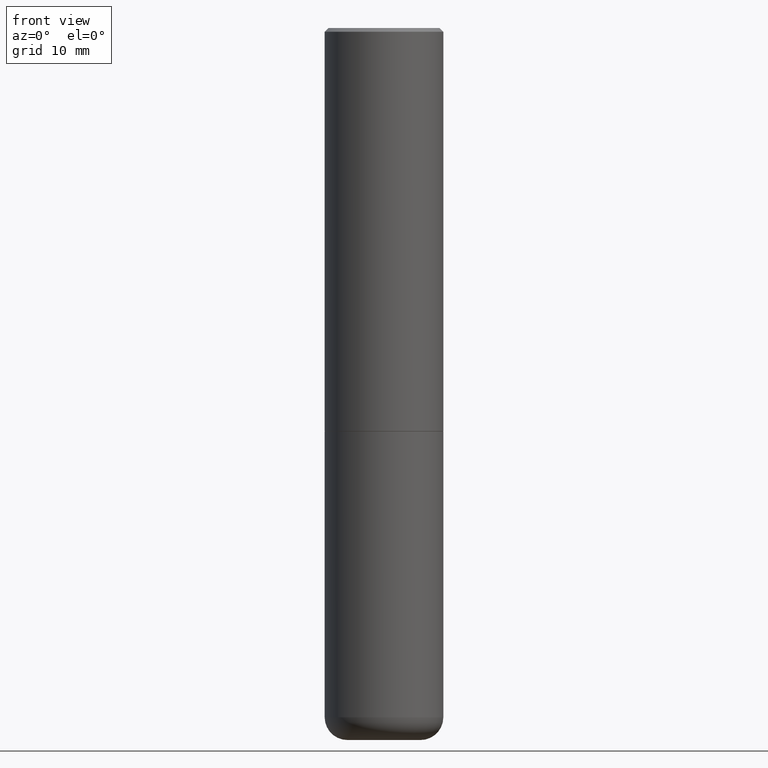
[diagram: clean part render]
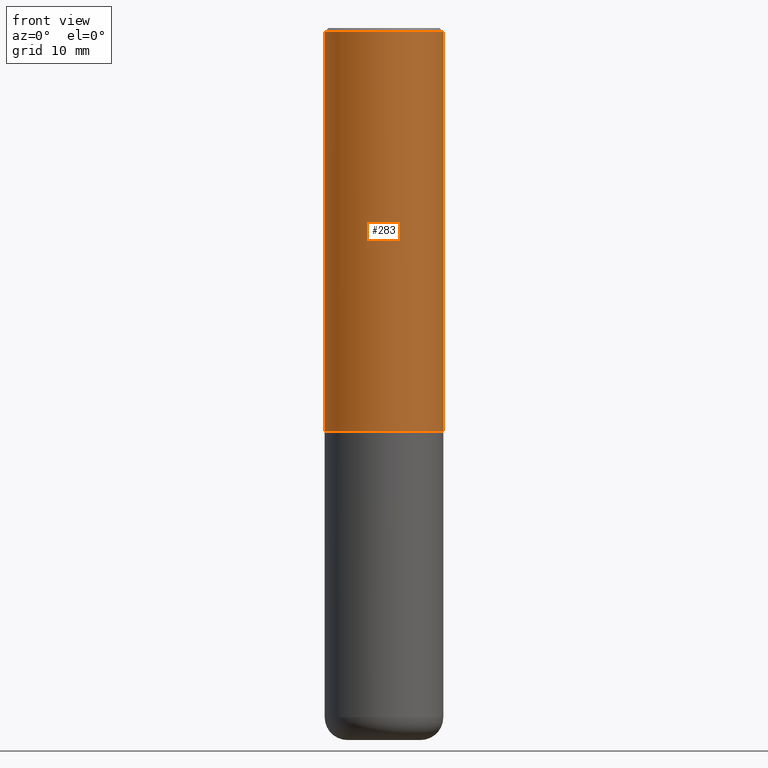
[diagram: same view with one face highlighted and labeled with its STEP entity id]
A machine part, front view. The second image highlights one B-rep face of the part: STEP entity #283.
In plain terms, the highlighted cylindrical surface (partial cylindrical patch) has radius 7.9375 mm, axis along (-0, 0, 1).
Its self-contained STEP definition (entity closure, byte-faithful):
#2 = ORIENTED_EDGE ( 'NONE', *, *, #420, .T. ) ;
#5 = ORIENTED_EDGE ( 'NONE', *, *, #96, .T. ) ;
#15 = DIRECTION ( 'NONE',  ( 1.000000000000000000, -6.982962677686266711E-15, 0.000000000000000000 ) ) ;
#17 = CARTESIAN_POINT ( 'NONE',  ( 4.890937612370311694E-31, -6.982962677686347076E-17, -0.02000000000000015654 ) ) ;
#23 = CARTESIAN_POINT ( 'NONE',  ( -0.3125000000000000000, -1.522421945989534932E-15, -2.124000000000000110 ) ) ;
#43 = CARTESIAN_POINT ( 'NONE',  ( 0.3125000000000000000, -9.598082200479800541E-15, -2.124000000000000110 ) ) ;
#44 = DIRECTION ( 'NONE',  ( -2.445468806185136597E-29, 3.491481338843145583E-15, 1.000000000000000000 ) ) ;
#54 = LINE ( 'NONE', #181, #147 ) ;
#87 = VERTEX_POINT ( 'NONE', #23 ) ;
#96 = EDGE_CURVE ( 'NONE', #87, #185, #227, .T. ) ;
#146 = EDGE_LOOP ( 'NONE', ( #206, #5, #2, #272 ) ) ;
#147 = VECTOR ( 'NONE', #326, 39.37007874015748143 ) ;
#166 = CIRCLE ( 'NONE', #483, 0.3124999999999991673 ) ;
#175 = VECTOR ( 'NONE', #246, 39.37007874015748143 ) ;
#181 = CARTESIAN_POINT ( 'NONE',  ( -0.3124999999999996114, 2.220446049250310320E-15, -1.537167215704655990E-29 ) ) ;
#185 = VERTEX_POINT ( 'NONE', #43 ) ;
#190 = CARTESIAN_POINT ( 'NONE',  ( 5.194175744337230786E-29, -7.415906363702842194E-15, -2.124000000000000110 ) ) ;
#194 = VERTEX_POINT ( 'NONE', #247 ) ;
#205 = DIRECTION ( 'NONE',  ( -2.445468806185136597E-29, 3.491481338843145583E-15, 1.000000000000000000 ) ) ;
#206 = ORIENTED_EDGE ( 'NONE', *, *, #479, .F. ) ;
#214 = FACE_OUTER_BOUND ( 'NONE', #146, .T. ) ;
#227 = CIRCLE ( 'NONE', #245, 0.3125000000000000000 ) ;
#243 = DIRECTION ( 'NONE',  ( 1.000000000000000000, -6.982962677686266711E-15, 4.876176775795935232E-29 ) ) ;
#245 = AXIS2_PLACEMENT_3D ( 'NONE', #190, #44, #431 ) ;
#246 = DIRECTION ( 'NONE',  ( -2.445468806185136877E-29, 3.491481338843145188E-15, 1.000000000000000000 ) ) ;
#247 = CARTESIAN_POINT ( 'NONE',  ( -0.3124999999999991673, 2.112346210000089132E-15, -0.02000000000000015654 ) ) ;
#271 = CYLINDRICAL_SURFACE ( 'NONE', #319, 0.3124999999999996114 ) ;
#272 = ORIENTED_EDGE ( 'NONE', *, *, #413, .F. ) ;
#283 = ADVANCED_FACE ( 'NONE', ( #214 ), #271, .T. ) ;
#319 = AXIS2_PLACEMENT_3D ( 'NONE', #469, #205, #243 ) ;
#326 = DIRECTION ( 'NONE',  ( -2.445468806185136877E-29, 3.491481338843145188E-15, 1.000000000000000000 ) ) ;
#339 = VERTEX_POINT ( 'NONE', #464 ) ;
#357 = CARTESIAN_POINT ( 'NONE',  ( 0.3124999999999996114, -2.182175836776955586E-15, 1.523805242436227833E-29 ) ) ;
#403 = LINE ( 'NONE', #357, #175 ) ;
#413 = EDGE_CURVE ( 'NONE', #194, #339, #166, .T. ) ;
#420 = EDGE_CURVE ( 'NONE', #185, #339, #403, .T. ) ;
#431 = DIRECTION ( 'NONE',  ( 1.000000000000000000, -6.982962677686265133E-15, 0.000000000000000000 ) ) ;
#440 = DIRECTION ( 'NONE',  ( -2.445468806185136597E-29, 3.491481338843145583E-15, 1.000000000000000000 ) ) ;
#464 = CARTESIAN_POINT ( 'NONE',  ( 0.3124999999999991673, -2.213735251080461389E-15, -0.02000000000000015654 ) ) ;
#469 = CARTESIAN_POINT ( 'NONE',  ( 0.000000000000000000, 0.000000000000000000, 0.000000000000000000 ) ) ;
#479 = EDGE_CURVE ( 'NONE', #87, #194, #54, .T. ) ;
#483 = AXIS2_PLACEMENT_3D ( 'NONE', #17, #440, #15 ) ;